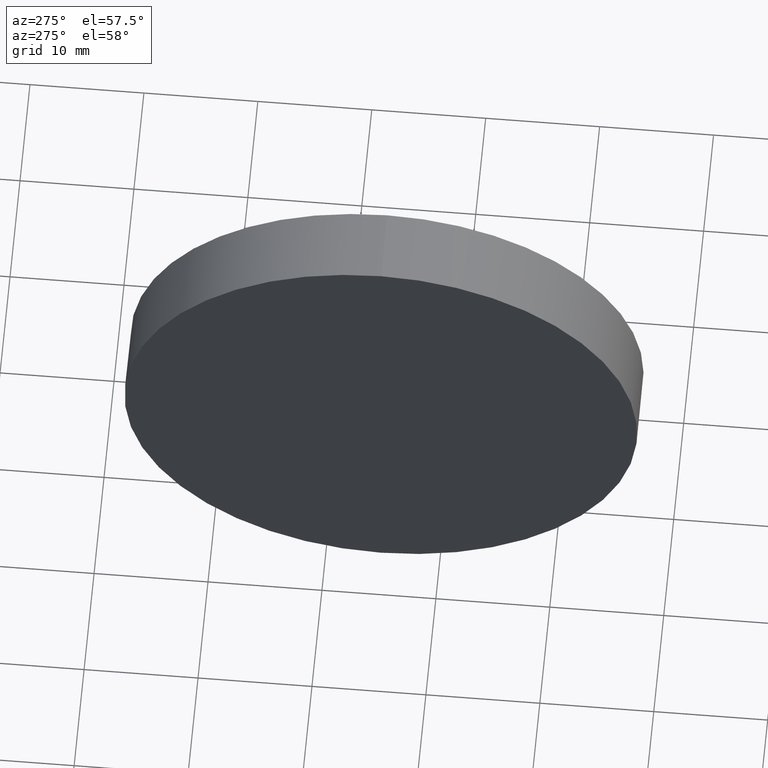
[diagram: clean part render]
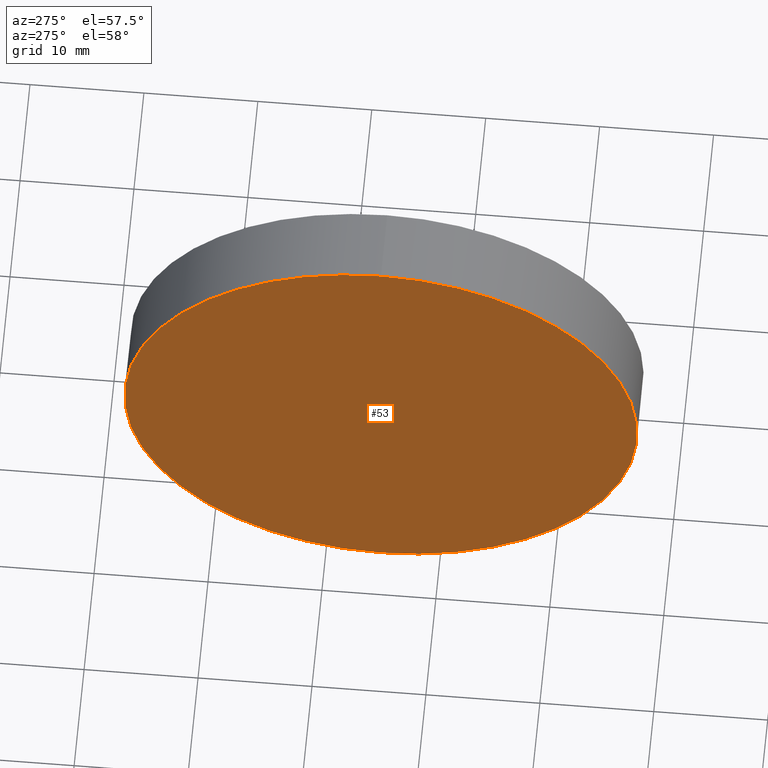
[diagram: same view with one face highlighted and labeled with its STEP entity id]
A machine part, auxiliary view. The second image highlights one B-rep face of the part: STEP entity #53.
In plain terms, the highlighted planar face has unit normal (1, 0, 0).
Its self-contained STEP definition (entity closure, byte-faithful):
#8 = VERTEX_POINT ( 'NONE', #137 ) ;
#13 = CARTESIAN_POINT ( 'NONE',  ( 113.7198928399500900, 65.15563045701519200, 22.49999999999997900 ) ) ;
#16 = CARTESIAN_POINT ( 'NONE',  ( 113.7198928399500900, 65.15563045701519200, 0.0000000000000000000 ) ) ;
#17 = CARTESIAN_POINT ( 'NONE',  ( 113.7198928399500900, 65.15563045701519200, 0.0000000000000000000 ) ) ;
#27 = AXIS2_PLACEMENT_3D ( 'NONE', #16, #140, #58 ) ;
#53 = ADVANCED_FACE ( 'NONE', ( #67 ), #93, .F. ) ;
#58 = DIRECTION ( 'NONE',  ( 0.0000000000000000000, 0.0000000000000000000, 1.000000000000000000 ) ) ;
#67 = FACE_OUTER_BOUND ( 'NONE', #160, .T. ) ;
#76 = VERTEX_POINT ( 'NONE', #13 ) ;
#80 = DIRECTION ( 'NONE',  ( 0.0000000000000000000, 0.0000000000000000000, -1.000000000000000000 ) ) ;
#81 = DIRECTION ( 'NONE',  ( 0.0000000000000000000, 0.0000000000000000000, 1.000000000000000000 ) ) ;
#93 = PLANE ( 'NONE',  #154 ) ;
#96 = CARTESIAN_POINT ( 'NONE',  ( 113.7198928399500900, 65.15563045701517800, 0.0000000000000000000 ) ) ;
#102 = EDGE_CURVE ( 'NONE', #76, #8, #165, .T. ) ;
#109 = DIRECTION ( 'NONE',  ( 1.000000000000000000, 0.0000000000000000000, 0.0000000000000000000 ) ) ;
#129 = ORIENTED_EDGE ( 'NONE', *, *, #169, .T. ) ;
#130 = DIRECTION ( 'NONE',  ( -1.000000000000000000, -0.0000000000000000000, -0.0000000000000000000 ) ) ;
#137 = CARTESIAN_POINT ( 'NONE',  ( 113.7198928399500900, 65.15563045701519200, -22.49999999999997900 ) ) ;
#139 = AXIS2_PLACEMENT_3D ( 'NONE', #17, #130, #81 ) ;
#140 = DIRECTION ( 'NONE',  ( -1.000000000000000000, -0.0000000000000000000, -0.0000000000000000000 ) ) ;
#154 = AXIS2_PLACEMENT_3D ( 'NONE', #96, #109, #80 ) ;
#160 = EDGE_LOOP ( 'NONE', ( #166, #129 ) ) ;
#165 = CIRCLE ( 'NONE', #139, 22.49999999999997900 ) ;
#166 = ORIENTED_EDGE ( 'NONE', *, *, #102, .T. ) ;
#169 = EDGE_CURVE ( 'NONE', #8, #76, #179, .T. ) ;
#179 = CIRCLE ( 'NONE', #27, 22.49999999999997900 ) ;